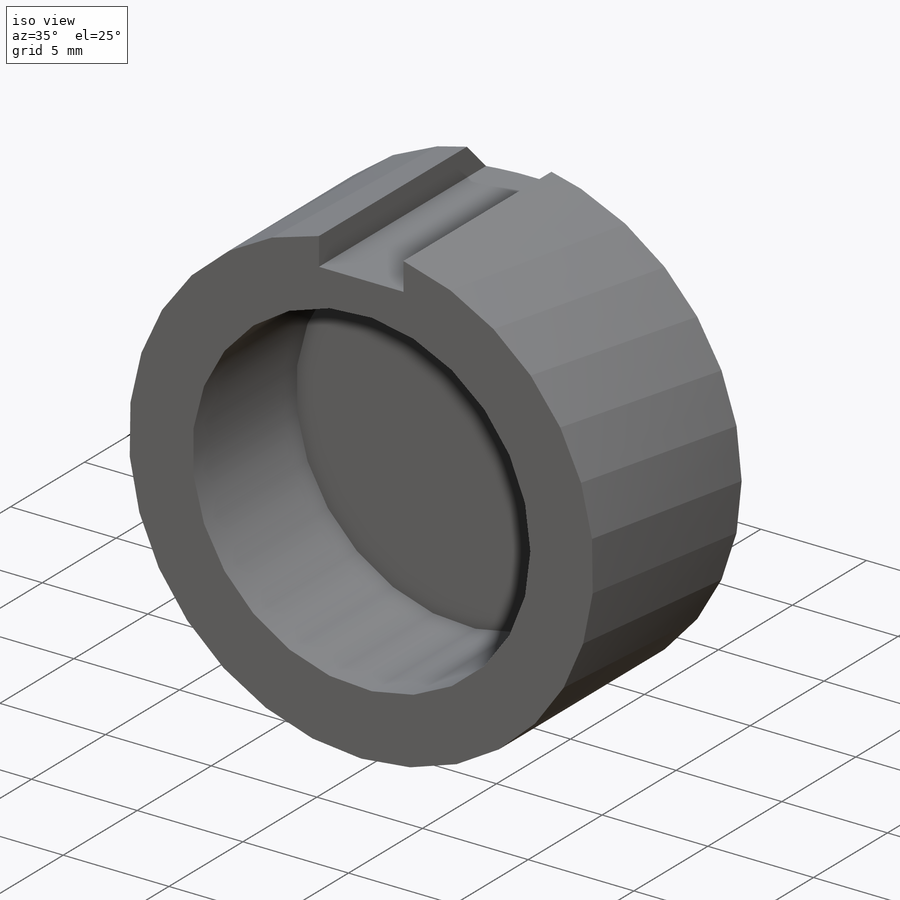
[diagram: iso view]
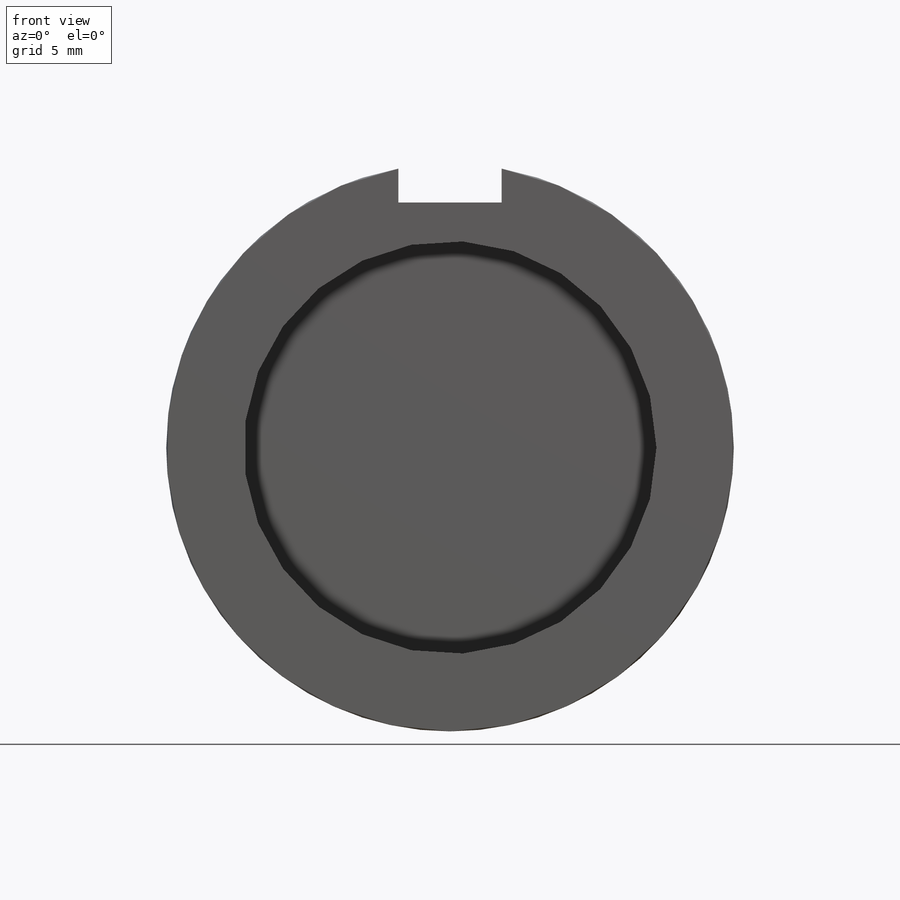
[diagram: front view]
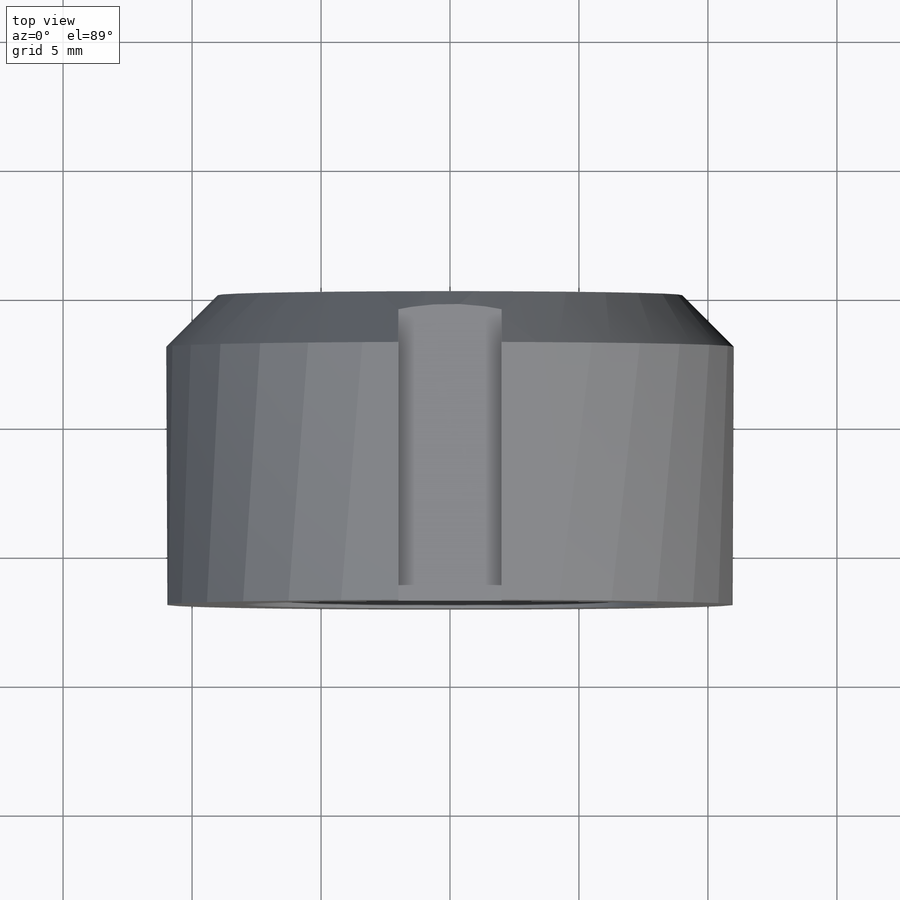
[diagram: top view]
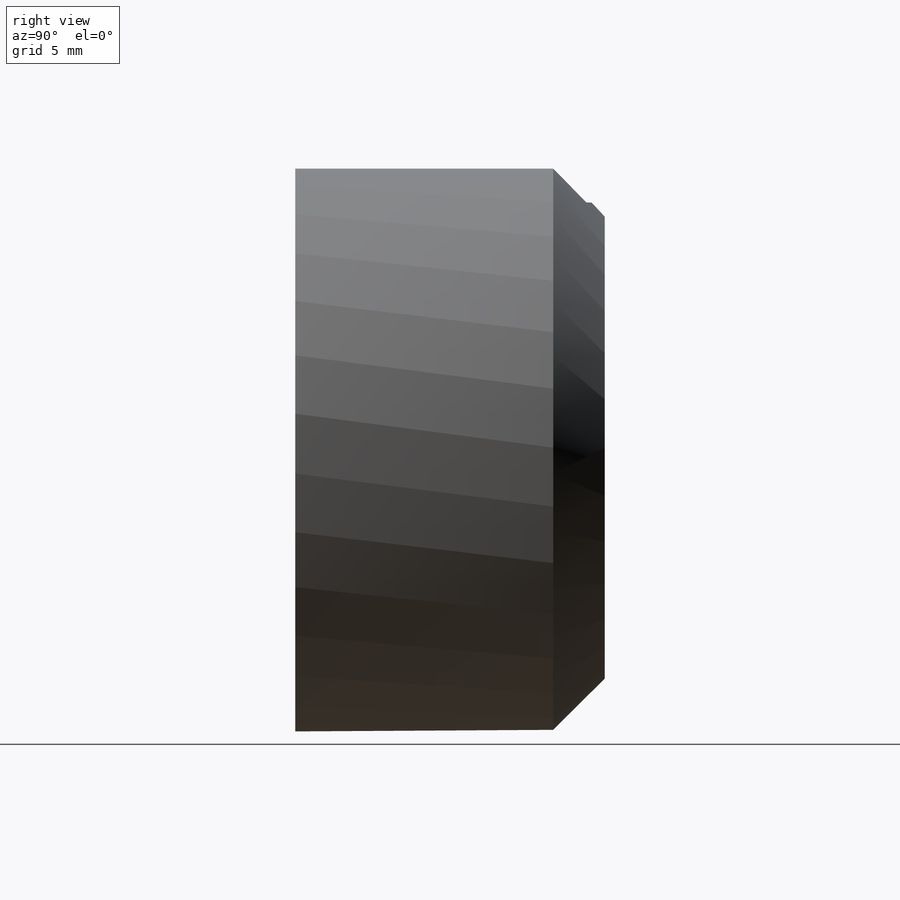
[diagram: right view]
SOLIDWORKS PART (.sldprt)
format: sldprt  version: not decoded by parser v0  size: 188,928 bytes
history: native  units: mm
features: sketch x3, cut_extrude x2, material x1, extrude x1, chamfer x1 (+14 scaffold rows collapsed)
feature tree (22):
  scaffold x14  (default folders/planes/origin — collapsed)
  material  "201 Annealed Stainless Steel (SS)"
  sketch  "Sketch1"  dims[D1=22.0mm]
  extrude  "Boss-Extrude1"  Depth=12mm
  sketch  "Sketch2"  dims[D1=16.0mm]
  cut_extrude  "Cut-Extrude1"  Depth=7mm
  chamfer  "Chamfer1"  Distance=2mm Angle=45deg
  sketch  "Sketch3"  dims[c1.D2=22.0mm c1.D1=4.0mm c2.D2=1.5mm c2.D3=~3.288894mm]
  cut_extrude  "Cut-Extrude2"  Depth=22mm
decode coverage: 7 of 7 modeling features carry decoded parameters
note: ~ marks probable driven/reference dimensions
note: suppression state not decoded; provenance and decode notes live in map.json
